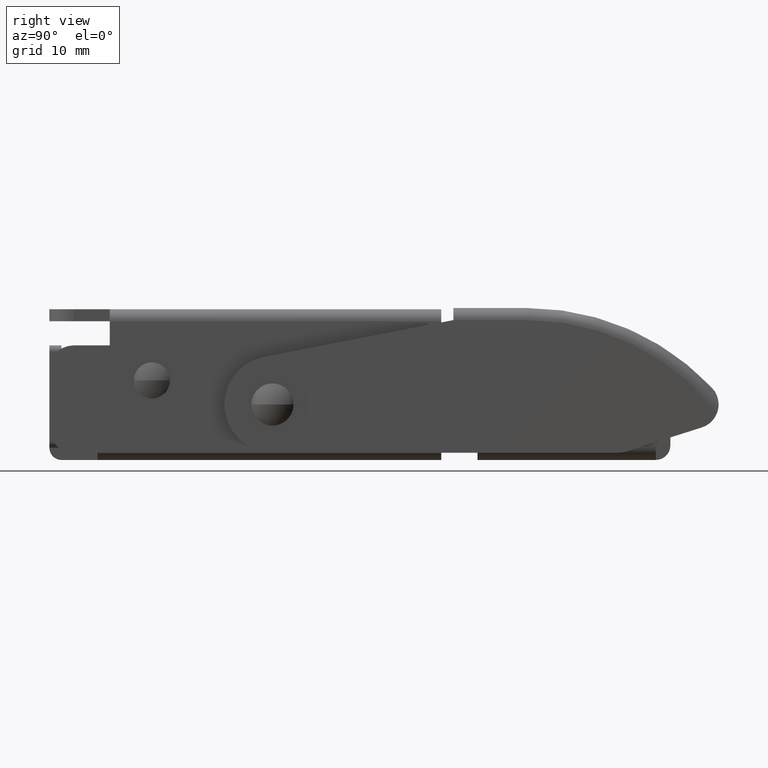
[diagram: clean part render]
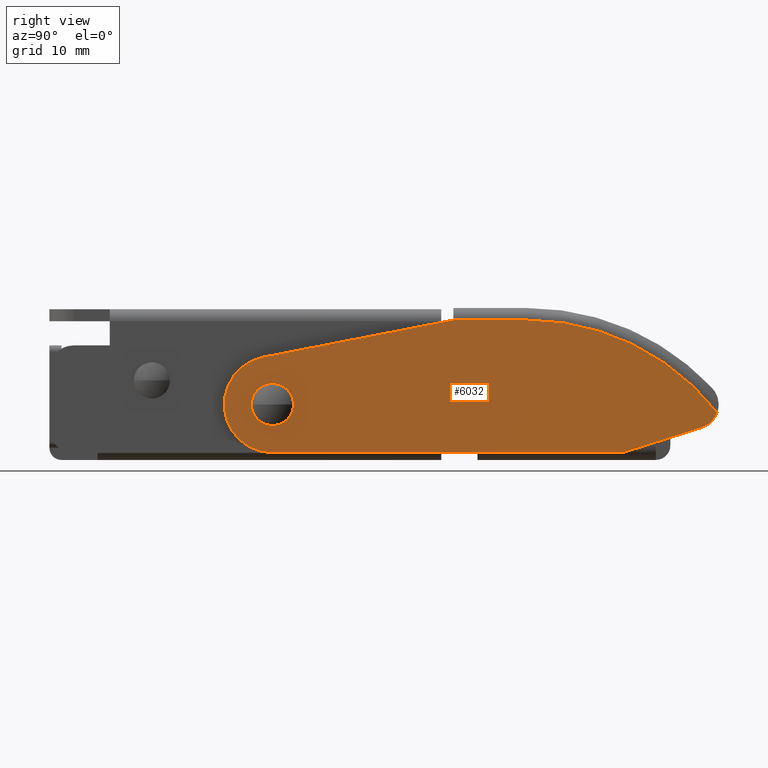
[diagram: same view with one face highlighted and labeled with its STEP entity id]
A machine part, right view. The second image highlights one B-rep face of the part: STEP entity #6032.
In plain terms, the highlighted planar face has unit normal (1, 0, 0).
Its self-contained STEP definition (entity closure, byte-faithful):
#35 = CARTESIAN_POINT ( 'NONE',  ( 9.899999999999998600, 0.0000000000000000000, -4.000000000000000000 ) ) ;
#139 = EDGE_LOOP ( 'NONE', ( #4399, #6363, #2108, #7514, #1361, #5311, #7662, #7842 ) ) ;
#174 = AXIS2_PLACEMENT_3D ( 'NONE', #5890, #2197, #6499 ) ;
#436 = AXIS2_PLACEMENT_3D ( 'NONE', #5483, #1758, #6086 ) ;
#523 = CARTESIAN_POINT ( 'NONE',  ( 9.899999999999998600, 21.14359353944897900, 7.000000000000005300 ) ) ;
#561 = ORIENTED_EDGE ( 'NONE', *, *, #7402, .T. ) ;
#599 = EDGE_CURVE ( 'NONE', #3024, #6668, #2424, .T. ) ;
#816 = DIRECTION ( 'NONE',  ( 0.0000000000000000000, 0.9532542188779434800, 0.3021694792519620300 ) ) ;
#864 = EDGE_CURVE ( 'NONE', #961, #3571, #6146, .T. ) ;
#961 = VERTEX_POINT ( 'NONE', #3505 ) ;
#1063 = DIRECTION ( 'NONE',  ( 1.000000000000000000, 0.0000000000000000000, 0.0000000000000000000 ) ) ;
#1219 = VECTOR ( 'NONE', #6511, 999.9999999999998900 ) ;
#1260 = VERTEX_POINT ( 'NONE', #3290 ) ;
#1361 = ORIENTED_EDGE ( 'NONE', *, *, #3954, .T. ) ;
#1529 = CARTESIAN_POINT ( 'NONE',  ( 9.899999999999998600, 21.14359353944897200, 7.000000000000001800 ) ) ;
#1636 = DIRECTION ( 'NONE',  ( -1.000000000000000000, -7.228014483236698500E-016, -0.0000000000000000000 ) ) ;
#1758 = DIRECTION ( 'NONE',  ( -1.000000000000000000, -7.228014483236698500E-016, -0.0000000000000000000 ) ) ;
#1818 = ORIENTED_EDGE ( 'NONE', *, *, #6050, .T. ) ;
#1854 = EDGE_CURVE ( 'NONE', #6668, #961, #7877, .T. ) ;
#1881 = DIRECTION ( 'NONE',  ( 0.0000000000000000000, 1.000000000000000000, 0.0000000000000000000 ) ) ;
#2056 = CARTESIAN_POINT ( 'NONE',  ( 9.899999999999998600, 29.00000000000000000, -4.000000000000000000 ) ) ;
#2108 = ORIENTED_EDGE ( 'NONE', *, *, #864, .T. ) ;
#2164 = DIRECTION ( 'NONE',  ( -0.0000000000000000000, -1.000000000000000000, 0.0000000000000000000 ) ) ;
#2197 = DIRECTION ( 'NONE',  ( -1.000000000000000000, -0.0000000000000000000, 0.0000000000000000000 ) ) ;
#2246 = AXIS2_PLACEMENT_3D ( 'NONE', #4776, #1063, #5401 ) ;
#2424 = CIRCLE ( 'NONE', #4563, 20.00000000000000400 ) ;
#2494 = DIRECTION ( 'NONE',  ( 1.000000000000000000, 0.0000000000000000000, 0.0000000000000000000 ) ) ;
#2817 = EDGE_CURVE ( 'NONE', #5172, #4165, #4973, .T. ) ;
#2878 = PLANE ( 'NONE',  #3613 ) ;
#2963 = VERTEX_POINT ( 'NONE', #4875 ) ;
#3019 = DIRECTION ( 'NONE',  ( 1.000000000000000000, 0.0000000000000000000, 0.0000000000000000000 ) ) ;
#3024 = VERTEX_POINT ( 'NONE', #3135 ) ;
#3135 = CARTESIAN_POINT ( 'NONE',  ( 9.899999999999998600, 36.88638299840231800, -0.6644991973950447100 ) ) ;
#3195 = AXIS2_PLACEMENT_3D ( 'NONE', #5351, #1636, #5972 ) ;
#3290 = CARTESIAN_POINT ( 'NONE',  ( 9.899999999999998600, 28.69059892324149200, -4.000000000000000000 ) ) ;
#3387 = VECTOR ( 'NONE', #1881, 1000.000000000000000 ) ;
#3479 = CARTESIAN_POINT ( 'NONE',  ( 9.899999999999998600, 34.99999999999999300, 0.0000000000000000000 ) ) ;
#3504 = DIRECTION ( 'NONE',  ( 0.0000000000000000000, 0.0000000000000000000, -1.000000000000000000 ) ) ;
#3505 = CARTESIAN_POINT ( 'NONE',  ( 9.899999999999998600, 15.00000000000000000, 7.000000000000001800 ) ) ;
#3571 = VERTEX_POINT ( 'NONE', #4438 ) ;
#3613 = AXIS2_PLACEMENT_3D ( 'NONE', #3479, #7164, #3504 ) ;
#3954 = EDGE_CURVE ( 'NONE', #6150, #1260, #4993, .T. ) ;
#4018 = CIRCLE ( 'NONE', #3195, 1.750000000000000700 ) ;
#4165 = VERTEX_POINT ( 'NONE', #5793 ) ;
#4266 = CIRCLE ( 'NONE', #6157, 2.000000000000002200 ) ;
#4399 = ORIENTED_EDGE ( 'NONE', *, *, #599, .T. ) ;
#4438 = CARTESIAN_POINT ( 'NONE',  ( 9.899999999999998600, -0.7654985230578559300, 3.926068263695404500 ) ) ;
#4495 = CARTESIAN_POINT ( 'NONE',  ( 9.900000000000003900, -1.749999999999998700, 0.0000000000000000000 ) ) ;
#4563 = AXIS2_PLACEMENT_3D ( 'NONE', #6793, #2494, #6161 ) ;
#4776 = CARTESIAN_POINT ( 'NONE',  ( 9.899999999999998600, 28.69059892324149900, -2.000000000000000000 ) ) ;
#4875 = CARTESIAN_POINT ( 'NONE',  ( 9.900000000000000400, 1.749999999999999800, 2.143131898507865800E-016 ) ) ;
#4973 = LINE ( 'NONE', #2056, #7863 ) ;
#4993 = LINE ( 'NONE', #35, #3387 ) ;
#5172 = VERTEX_POINT ( 'NONE', #5838 ) ;
#5176 = CIRCLE ( 'NONE', #2246, 2.000000000000000000 ) ;
#5203 = EDGE_CURVE ( 'NONE', #6150, #3571, #6317, .T. ) ;
#5311 = ORIENTED_EDGE ( 'NONE', *, *, #5337, .T. ) ;
#5329 = CIRCLE ( 'NONE', #436, 1.750000000000000700 ) ;
#5337 = EDGE_CURVE ( 'NONE', #1260, #5172, #5176, .T. ) ;
#5351 = CARTESIAN_POINT ( 'NONE',  ( 9.900000000000002100, -4.336808689942008400E-016, 0.0000000000000000000 ) ) ;
#5401 = DIRECTION ( 'NONE',  ( 0.0000000000000000000, 0.0000000000000000000, -1.000000000000000000 ) ) ;
#5483 = CARTESIAN_POINT ( 'NONE',  ( 9.900000000000002100, -4.336808689942008400E-016, 0.0000000000000000000 ) ) ;
#5516 = EDGE_LOOP ( 'NONE', ( #561, #1818 ) ) ;
#5793 = CARTESIAN_POINT ( 'NONE',  ( 9.899999999999998600, 35.60433895850392400, -1.906508437755890100 ) ) ;
#5838 = CARTESIAN_POINT ( 'NONE',  ( 9.899999999999998600, 29.29493788174542200, -3.906508437755886700 ) ) ;
#5890 = CARTESIAN_POINT ( 'NONE',  ( 9.899999999999998600, 0.0000000000000000000, 0.0000000000000000000 ) ) ;
#5972 = DIRECTION ( 'NONE',  ( 9.912705577010322600E-016, -1.000000000000000000, 0.0000000000000000000 ) ) ;
#6032 = ADVANCED_FACE ( 'NONE', ( #6879, #7078 ), #2878, .T. ) ;
#6050 = EDGE_CURVE ( 'NONE', #2963, #7120, #4018, .T. ) ;
#6086 = DIRECTION ( 'NONE',  ( 9.912705577010322600E-016, -1.000000000000000000, 0.0000000000000000000 ) ) ;
#6146 = LINE ( 'NONE', #6994, #1219 ) ;
#6150 = VERTEX_POINT ( 'NONE', #7315 ) ;
#6157 = AXIS2_PLACEMENT_3D ( 'NONE', #6705, #3019, #7311 ) ;
#6161 = DIRECTION ( 'NONE',  ( 0.0000000000000000000, 0.0000000000000000000, -1.000000000000000000 ) ) ;
#6223 = VECTOR ( 'NONE', #2164, 1000.000000000000000 ) ;
#6317 = CIRCLE ( 'NONE', #174, 4.000000000000000000 ) ;
#6363 = ORIENTED_EDGE ( 'NONE', *, *, #1854, .T. ) ;
#6499 = DIRECTION ( 'NONE',  ( 0.0000000000000000000, 0.0000000000000000000, 1.000000000000000000 ) ) ;
#6511 = DIRECTION ( 'NONE',  ( 0.0000000000000000000, -0.9815170659238510200, -0.1913746307644638200 ) ) ;
#6668 = VERTEX_POINT ( 'NONE', #523 ) ;
#6672 = EDGE_CURVE ( 'NONE', #4165, #3024, #4266, .T. ) ;
#6705 = CARTESIAN_POINT ( 'NONE',  ( 9.899999999999998600, 34.99999999999999300, 0.0000000000000000000 ) ) ;
#6793 = CARTESIAN_POINT ( 'NONE',  ( 9.899999999999998600, 21.14359353944897500, -13.00000000000000000 ) ) ;
#6879 = FACE_BOUND ( 'NONE', #5516, .T. ) ;
#6994 = CARTESIAN_POINT ( 'NONE',  ( 9.899999999999998600, 15.00000000000000000, 7.000000000000001800 ) ) ;
#7078 = FACE_OUTER_BOUND ( 'NONE', #139, .T. ) ;
#7120 = VERTEX_POINT ( 'NONE', #4495 ) ;
#7164 = DIRECTION ( 'NONE',  ( 1.000000000000000000, 0.0000000000000000000, 0.0000000000000000000 ) ) ;
#7311 = DIRECTION ( 'NONE',  ( 0.0000000000000000000, 0.0000000000000000000, -1.000000000000000000 ) ) ;
#7315 = CARTESIAN_POINT ( 'NONE',  ( 9.899999999999998600, 4.898587196589412800E-016, -4.000000000000000000 ) ) ;
#7402 = EDGE_CURVE ( 'NONE', #7120, #2963, #5329, .T. ) ;
#7514 = ORIENTED_EDGE ( 'NONE', *, *, #5203, .F. ) ;
#7662 = ORIENTED_EDGE ( 'NONE', *, *, #2817, .T. ) ;
#7842 = ORIENTED_EDGE ( 'NONE', *, *, #6672, .T. ) ;
#7863 = VECTOR ( 'NONE', #816, 1000.000000000000000 ) ;
#7877 = LINE ( 'NONE', #1529, #6223 ) ;